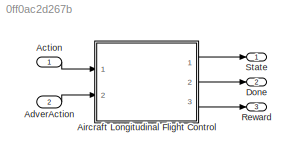
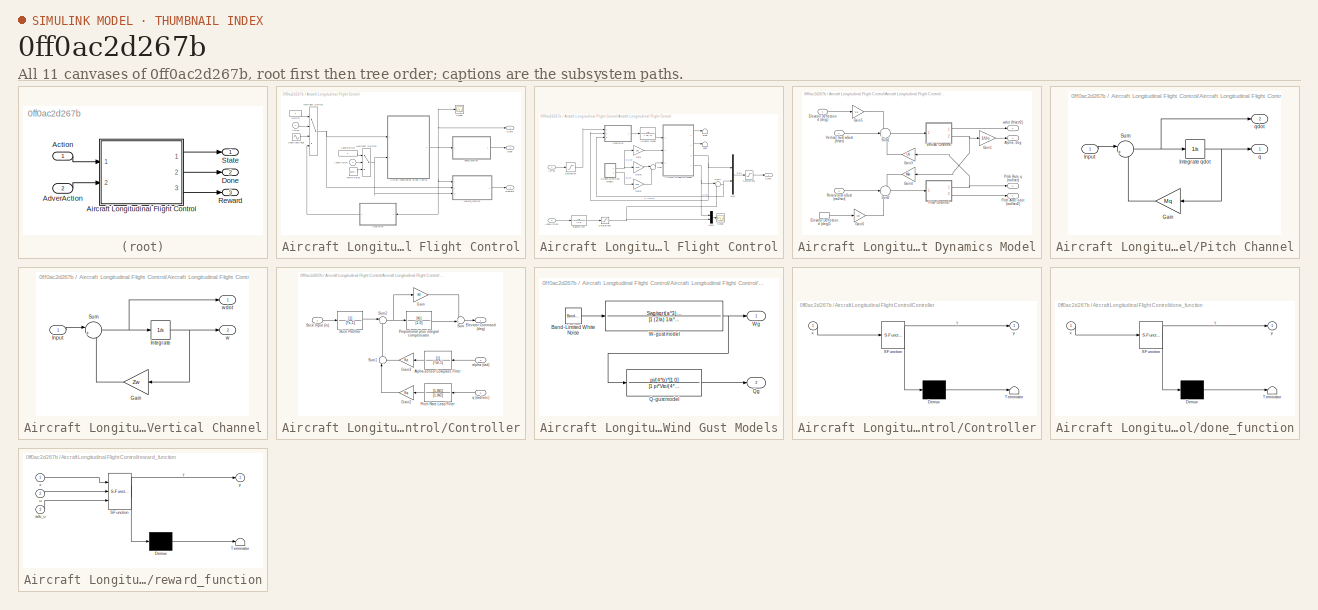
[diagram: thumbnail index - all 11 canvases of the model, root first then tree order]
MODEL slx_0ff0ac2d267b
KIND model
CONFIG AbsTol = auto
CONFIG EnableMultiTasking = off
CONFIG FixedStep = auto
CONFIG MaxStep = auto
CONFIG MinStep = auto
CONFIG RelTol = 1e-3
CONFIG SampleTimeConstraint = Unconstrained
CONFIG Solver = FixedStepAuto
CONFIG SolverName = FixedStepAuto
CONFIG StartTime = 0.0
CONFIG StopTime = 10.0
WORKSPACE source: MAT-file member
WORKSPACE Beta = 426.4352
BLOCK [Inport] Action
  IconDisplay = Port number
BLOCK [Inport] AdverAction
  IconDisplay = Port number
  Port = 2
BLOCK [SubSystem] Aircraft Longitudinal Flight Control
  Ports = [2, 3]
  RequestExecContextInheritance = off
BLOCK [Inport] Aircraft Longitudinal Flight Control/Action
  IconDisplay = Port number
BLOCK [Inport] Aircraft Longitudinal Flight Control/AdverAction
  IconDisplay = Port number
  Port = 2
BLOCK [Constant] Aircraft Longitudinal Flight Control/AdverSwitch
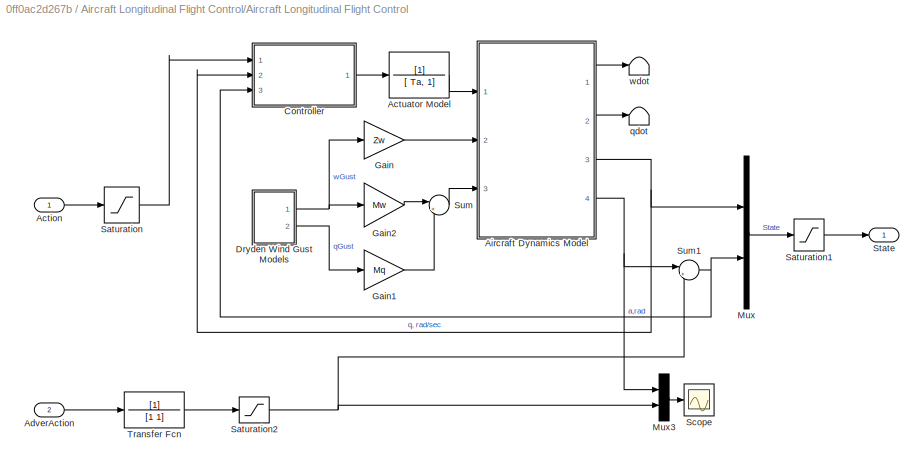
BLOCK [SubSystem] Aircraft Longitudinal Flight Control/Aircraft Longitudinal Flight Control
  Ports = [2, 1]
  RequestExecContextInheritance = off
BLOCK [Inport] Aircraft Longitudinal Flight Control/Aircraft Longitudinal Flight Control/Action
  IconDisplay = Port number
BLOCK [TransferFcn] Aircraft Longitudinal Flight Control/Aircraft Longitudinal Flight Control/Actuator Model
  Denominator = [ Ta, 1]
BLOCK [Inport] Aircraft Longitudinal Flight Control/Aircraft Longitudinal Flight Control/AdverAction
  IconDisplay = Port number
  Port = 2
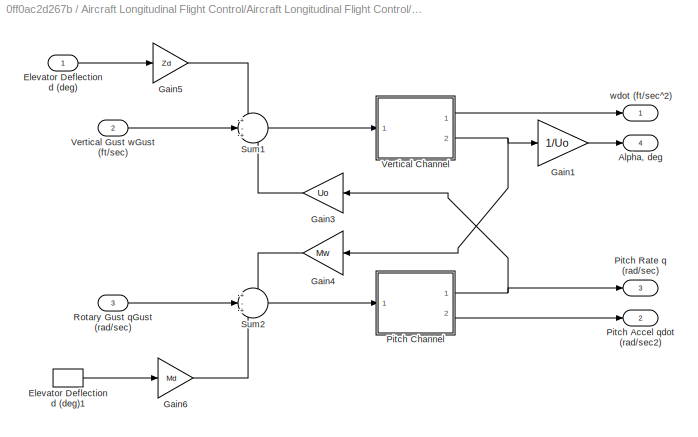
BLOCK [SubSystem] Aircraft Longitudinal Flight Control/Aircraft Longitudinal Flight Control/Aircraft Dynamics Model
  Ports = [3, 4]
  RequestExecContextInheritance = off
BLOCK [Outport] Aircraft Longitudinal Flight Control/Aircraft Longitudinal Flight Control/Aircraft Dynamics Model/Alpha, deg
  IconDisplay = Port number
  InitialOutput = 0
  Port = 4
BLOCK [Inport] Aircraft Longitudinal Flight Control/Aircraft Longitudinal Flight Control/Aircraft Dynamics Model/Elevator Deflection d (deg)
  IconDisplay = Port number
BLOCK [InportShadow] Aircraft Longitudinal Flight Control/Aircraft Longitudinal Flight Control/Aircraft Dynamics Model/Elevator Deflection d (deg)1
  IconDisplay = Port number
BLOCK [Gain] Aircraft Longitudinal Flight Control/Aircraft Longitudinal Flight Control/Aircraft Dynamics Model/Gain1
  Gain = 1/Uo
BLOCK [Gain] Aircraft Longitudinal Flight Control/Aircraft Longitudinal Flight Control/Aircraft Dynamics Model/Gain3
  Gain = Uo
BLOCK [Gain] Aircraft Longitudinal Flight Control/Aircraft Longitudinal Flight Control/Aircraft Dynamics Model/Gain4
  Gain = Mw
BLOCK [Gain] Aircraft Longitudinal Flight Control/Aircraft Longitudinal Flight Control/Aircraft Dynamics Model/Gain5
  Gain = Zd
BLOCK [Gain] Aircraft Longitudinal Flight Control/Aircraft Longitudinal Flight Control/Aircraft Dynamics Model/Gain6
  Gain = Md
BLOCK [Outport] Aircraft Longitudinal Flight Control/Aircraft Longitudinal Flight Control/Aircraft Dynamics Model/Pitch Accel qdot (rad//sec2)
  IconDisplay = Port number
  InitialOutput = 0
  Port = 2
BLOCK [SubSystem] Aircraft Longitudinal Flight Control/Aircraft Longitudinal Flight Control/Aircraft Dynamics Model/Pitch Channel
  Ports = [1, 2]
  RequestExecContextInheritance = off
BLOCK [Gain] Aircraft Longitudinal Flight Control/Aircraft Longitudinal Flight Control/Aircraft Dynamics Model/Pitch Channel/Gain
  Gain = Mq
BLOCK [Inport] Aircraft Longitudinal Flight Control/Aircraft Longitudinal Flight Control/Aircraft Dynamics Model/Pitch Channel/Input
  IconDisplay = Port number
BLOCK [Integrator] Aircraft Longitudinal Flight Control/Aircraft Longitudinal Flight Control/Aircraft Dynamics Model/Pitch Channel/Integrate qdot
  InitialCondition = x_ini(2)
  Ports = [1, 1]
BLOCK [Sum] Aircraft Longitudinal Flight Control/Aircraft Longitudinal Flight Control/Aircraft Dynamics Model/Pitch Channel/Sum
  IconShape = round
  Inputs = |++
  Ports = [2, 1]
BLOCK [Outport] Aircraft Longitudinal Flight Control/Aircraft Longitudinal Flight Control/Aircraft Dynamics Model/Pitch Channel/q
  IconDisplay = Port number
  InitialOutput = 0
BLOCK [Outport] Aircraft Longitudinal Flight Control/Aircraft Longitudinal Flight Control/Aircraft Dynamics Model/Pitch Channel/qdot
  IconDisplay = Port number
  InitialOutput = 0
  Port = 2
BLOCK [Outport] Aircraft Longitudinal Flight Control/Aircraft Longitudinal Flight Control/Aircraft Dynamics Model/Pitch Rate q (rad//sec)
  IconDisplay = Port number
  InitialOutput = 0
  Port = 3
BLOCK [Inport] Aircraft Longitudinal Flight Control/Aircraft Longitudinal Flight Control/Aircraft Dynamics Model/Rotary Gust qGust (rad//sec)
  IconDisplay = Port number
  Port = 3
BLOCK [Sum] Aircraft Longitudinal Flight Control/Aircraft Longitudinal Flight Control/Aircraft Dynamics Model/Sum1
  IconShape = round
  Inputs = +-+
  Ports = [3, 1]
BLOCK [Sum] Aircraft Longitudinal Flight Control/Aircraft Longitudinal Flight Control/Aircraft Dynamics Model/Sum2
  IconShape = round
  Inputs = +-+
  Ports = [3, 1]
BLOCK [SubSystem] Aircraft Longitudinal Flight Control/Aircraft Longitudinal Flight Control/Aircraft Dynamics Model/Vertical Channel
  Ports = [1, 2]
  RequestExecContextInheritance = off
BLOCK [Gain] Aircraft Longitudinal Flight Control/Aircraft Longitudinal Flight Control/Aircraft Dynamics Model/Vertical Channel/Gain
  Gain = Zw
BLOCK [Inport] Aircraft Longitudinal Flight Control/Aircraft Longitudinal Flight Control/Aircraft Dynamics Model/Vertical Channel/Input
  IconDisplay = Port number
BLOCK [Integrator] Aircraft Longitudinal Flight Control/Aircraft Longitudinal Flight Control/Aircraft Dynamics Model/Vertical Channel/Integrate
  InitialCondition = x_ini(1)
  Ports = [1, 1]
BLOCK [Sum] Aircraft Longitudinal Flight Control/Aircraft Longitudinal Flight Control/Aircraft Dynamics Model/Vertical Channel/Sum
  IconShape = round
  Inputs = |++
  Ports = [2, 1]
BLOCK [Outport] Aircraft Longitudinal Flight Control/Aircraft Longitudinal Flight Control/Aircraft Dynamics Model/Vertical Channel/w
  IconDisplay = Port number
  InitialOutput = 0
  Port = 2
BLOCK [Outport] Aircraft Longitudinal Flight Control/Aircraft Longitudinal Flight Control/Aircraft Dynamics Model/Vertical Channel/wdot
  IconDisplay = Port number
  InitialOutput = 0
BLOCK [Inport] Aircraft Longitudinal Flight Control/Aircraft Longitudinal Flight Control/Aircraft Dynamics Model/Vertical Gust wGust (ft//sec)
  IconDisplay = Port number
  Port = 2
BLOCK [Outport] Aircraft Longitudinal Flight Control/Aircraft Longitudinal Flight Control/Aircraft Dynamics Model/wdot (ft//sec^2)
  IconDisplay = Port number
  InitialOutput = 0
BLOCK [SubSystem] Aircraft Longitudinal Flight Control/Aircraft Longitudinal Flight Control/Controller
  Ports = [3, 1]
  RequestExecContextInheritance = off
BLOCK [TransferFcn] Aircraft Longitudinal Flight Control/Aircraft Longitudinal Flight Control/Controller/Alpha-sensor Low-pass Filter
  Denominator = [Tal,1]
BLOCK [Outport] Aircraft Longitudinal Flight Control/Aircraft Longitudinal Flight Control/Controller/Elevator Command (deg)
  IconDisplay = Port number
  InitialOutput = 0
BLOCK [Gain] Aircraft Longitudinal Flight Control/Aircraft Longitudinal Flight Control/Controller/Gain
  Gain = Kf
BLOCK [Gain] Aircraft Longitudinal Flight Control/Aircraft Longitudinal Flight Control/Controller/Gain2
  Gain = Kq
BLOCK [Gain] Aircraft Longitudinal Flight Control/Aircraft Longitudinal Flight Control/Controller/Gain3
  Gain = Ka
BLOCK [TransferFcn] Aircraft Longitudinal Flight Control/Aircraft Longitudinal Flight Control/Controller/Pitch Rate Lead Filter
  Denominator = [1,W2]
  Numerator = [1,W1]
BLOCK [TransferFcn] Aircraft Longitudinal Flight Control/Aircraft Longitudinal Flight Control/Controller/Proportional plus integral compensator
  Denominator = [1,0]
  Numerator = [Ki]
BLOCK [Inport] Aircraft Longitudinal Flight Control/Aircraft Longitudinal Flight Control/Controller/Stick Input (in)
  IconDisplay = Port number
BLOCK [TransferFcn] Aircraft Longitudinal Flight Control/Aircraft Longitudinal Flight Control/Controller/Stick Prefilter
  Denominator = [Ts,1]
BLOCK [Sum] Aircraft Longitudinal Flight Control/Aircraft Longitudinal Flight Control/Controller/Sum
  IconShape = round
  Inputs = ++|
  Ports = [2, 1]
BLOCK [Sum] Aircraft Longitudinal Flight Control/Aircraft Longitudinal Flight Control/Controller/Sum1
  IconShape = round
  Inputs = |++
  Ports = [2, 1]
BLOCK [Sum] Aircraft Longitudinal Flight Control/Aircraft Longitudinal Flight Control/Controller/Sum2
  IconShape = round
  Inputs = |+-
  Ports = [2, 1]
BLOCK [Inport] Aircraft Longitudinal Flight Control/Aircraft Longitudinal Flight Control/Controller/alpha (rad)
  IconDisplay = Port number
  Port = 3
BLOCK [Inport] Aircraft Longitudinal Flight Control/Aircraft Longitudinal Flight Control/Controller/q (rad//sec)
  IconDisplay = Port number
  Port = 2
BLOCK [SubSystem] Aircraft Longitudinal Flight Control/Aircraft Longitudinal Flight Control/Dryden Wind Gust Models
  Ports = [0, 2]
  RequestExecContextInheritance = off
BLOCK [Reference] Aircraft Longitudinal Flight Control/Aircraft Longitudinal Flight Control/Dryden Wind Gust Models/Band-Limited White Noise  REF=simulink/Sources/Band-Limited
White Noise
  Ports = [0, 1]
  SourceBlock = simulink/Sources/Band-Limited\nWhite Noise
  SourceProductBaseCode = SL
  SourceProductName = Simulink
  SourceType = Band-Limited White Noise.
BLOCK [TransferFcn] Aircraft Longitudinal Flight Control/Aircraft Longitudinal Flight Control/Dryden Wind Gust Models/Q-gust model
  Denominator = [1 pi*Vto/(4*b)]
  Numerator = pi/(4*b)*[1 0]
BLOCK [Outport] Aircraft Longitudinal Flight Control/Aircraft Longitudinal Flight Control/Dryden Wind Gust Models/Qg
  IconDisplay = Port number
  InitialOutput = 0
  Port = 2
BLOCK [TransferFcn] Aircraft Longitudinal Flight Control/Aircraft Longitudinal Flight Control/Dryden Wind Gust Models/W-gust model
  Denominator = [1 (2/a) 1/a^2]
  Numerator = Swg/sqrt(a^3)*[sqrt(3)*a,1]
BLOCK [Outport] Aircraft Longitudinal Flight Control/Aircraft Longitudinal Flight Control/Dryden Wind Gust Models/Wg
  IconDisplay = Port number
  InitialOutput = 0
BLOCK [Gain] Aircraft Longitudinal Flight Control/Aircraft Longitudinal Flight Control/Gain
  Gain = Zw
BLOCK [Gain] Aircraft Longitudinal Flight Control/Aircraft Longitudinal Flight Control/Gain1
  Gain = Mq
BLOCK [Gain] Aircraft Longitudinal Flight Control/Aircraft Longitudinal Flight Control/Gain2
  Gain = Mw
BLOCK [Mux] Aircraft Longitudinal Flight Control/Aircraft Longitudinal Flight Control/Mux
  DisplayOption = bar
  Inputs = 2
  Ports = [2, 1]
BLOCK [Mux] Aircraft Longitudinal Flight Control/Aircraft Longitudinal Flight Control/Mux3
  DisplayOption = bar
  Inputs = 2
  Ports = [2, 1]
BLOCK [Saturate] Aircraft Longitudinal Flight Control/Aircraft Longitudinal Flight Control/Saturation
  InputPortMap = u0
  LowerLimit = a_min
  Ports = [1, 1]
  UpperLimit = a_max
BLOCK [Saturate] Aircraft Longitudinal Flight Control/Aircraft Longitudinal Flight Control/Saturation1
  InputPortMap = u0
  LowerLimit = x_min
  Ports = [1, 1]
  UpperLimit = x_max
BLOCK [Saturate] Aircraft Longitudinal Flight Control/Aircraft Longitudinal Flight Control/Saturation2
  InputPortMap = u0
  LowerLimit = adva_min
  Ports = [1, 1]
  UpperLimit = adva_max
BLOCK [Scope] Aircraft Longitudinal Flight Control/Aircraft Longitudinal Flight Control/Scope
  Floating = off
  NumInputPorts = 1
  Ports = [1]
  ScopeSpecificationString = Simulink.scopes.TimeScopeBlockCfg('CurrentConfiguration', extmgr.ConfigurationSet(extmgr.Configuration('Core','General UI',true),extmgr.Configuration('Core','Source UI',true),extmgr.Configuration('Sources','WiredSimulink',true,'DataLoggingVariableName','ScopeData1'),extmgr.Configuration('Visuals','Time Domain',true,'SerializedDisplays',{struct('MinYLimReal','-1.00000','MaxYLimReal','1.00000','YLab...<+1395ch>
BLOCK [Outport] Aircraft Longitudinal Flight Control/Aircraft Longitudinal Flight Control/State
  IconDisplay = Port number
  VectorParamsAs1DForOutWhenUnconnected = on
BLOCK [Sum] Aircraft Longitudinal Flight Control/Aircraft Longitudinal Flight Control/Sum
  IconShape = round
  Inputs = |++
  Ports = [2, 1]
BLOCK [Sum] Aircraft Longitudinal Flight Control/Aircraft Longitudinal Flight Control/Sum1
  IconShape = round
  InputSameDT = off
  Inputs = |++
  OutDataTypeStr = Inherit: Inherit via internal rule
  Ports = [2, 1]
  SaturateOnIntegerOverflow = off
BLOCK [TransferFcn] Aircraft Longitudinal Flight Control/Aircraft Longitudinal Flight Control/Transfer Fcn
  Denominator = [1 1]
BLOCK [Terminator] Aircraft Longitudinal Flight Control/Aircraft Longitudinal Flight Control/qdot
BLOCK [Terminator] Aircraft Longitudinal Flight Control/Aircraft Longitudinal Flight Control/wdot
BLOCK [SubSystem] Aircraft Longitudinal Flight Control/Controller
  ErrorFcn = Stateflow.Translate.translate
  PermitHierarchicalResolution = ExplicitOnly
  Ports = [1, 1]
  RequestExecContextInheritance = off
  SFBlockType = MATLAB Function
  TreatAsAtomicUnit = on
BLOCK [Demux] Aircraft Longitudinal Flight Control/Controller/ Demux 
  Outputs = 1
  Ports = [1, 1]
BLOCK [S-Function] Aircraft Longitudinal Flight Control/Controller/ SFunction 
  EnableBusSupport = on
  FunctionName = sf_sfun
  PortCounts = [1 2]
  Ports = [1, 2]
  SFcnIsStateOwnerBlock = off
  SFunctionDeploymentMode = off
  Tag = Stateflow S-Function aircraft 1
BLOCK [Terminator] Aircraft Longitudinal Flight Control/Controller/ Terminator 
BLOCK [Inport] Aircraft Longitudinal Flight Control/Controller/x
  IconDisplay = Port number
BLOCK [Outport] Aircraft Longitudinal Flight Control/Controller/y
  IconDisplay = Port number
  VectorParamsAs1DForOutWhenUnconnected = on
BLOCK [Outport] Aircraft Longitudinal Flight Control/Done
  IconDisplay = Port number
  Port = 2
  VectorParamsAs1DForOutWhenUnconnected = on
BLOCK [MultiPortSwitch] Aircraft Longitudinal Flight Control/Multiport Switch
  InputSameDT = off
  Ports = [4, 1]
  SaturateOnIntegerOverflow = off
BLOCK [MultiPortSwitch] Aircraft Longitudinal Flight Control/Multiport Switch1
  InputSameDT = off
  Inputs = 2
  Ports = [3, 1]
  SaturateOnIntegerOverflow = off
BLOCK [Sin] Aircraft Longitudinal Flight Control/Open-loop input
  Ports = [0, 1]
  SampleTime = 0
BLOCK [Outport] Aircraft Longitudinal Flight Control/Reward
  IconDisplay = Port number
  Port = 3
  VectorParamsAs1DForOutWhenUnconnected = on
BLOCK [Scope] Aircraft Longitudinal Flight Control/Scope
  Floating = off
  NumInputPorts = 1
  Ports = [1]
  ScopeSpecificationString = Simulink.scopes.TimeScopeBlockCfg('CurrentConfiguration', extmgr.ConfigurationSet(extmgr.Configuration('Core','General UI',true),extmgr.Configuration('Core','Source UI',true),extmgr.Configuration('Sources','WiredSimulink',true,'DataLoggingVariableName','ScopeData1'),extmgr.Configuration('Visuals','Time Domain',true,'SerializedDisplays',{struct('MinYLimReal','-0.00562','MaxYLimReal','0.00516','YLab...<+1438ch>
BLOCK [Outport] Aircraft Longitudinal Flight Control/State
  IconDisplay = Port number
  VectorParamsAs1DForOutWhenUnconnected = on
BLOCK [Constant] Aircraft Longitudinal Flight Control/Switch
BLOCK [Reference] Aircraft Longitudinal Flight Control/White Noise  REF=simulink/Sources/Band-Limited
White Noise
  Commented = on
  Ports = [0, 1]
  SourceBlock = simulink/Sources/Band-Limited\nWhite Noise
  SourceProductBaseCode = SL
  SourceProductName = Simulink
  SourceType = Band-Limited White Noise.
BLOCK [SubSystem] Aircraft Longitudinal Flight Control/done_function
  ErrorFcn = Stateflow.Translate.translate
  PermitHierarchicalResolution = ExplicitOnly
  Ports = [1, 1]
  RequestExecContextInheritance = off
  SFBlockType = MATLAB Function
  TreatAsAtomicUnit = on
BLOCK [Demux] Aircraft Longitudinal Flight Control/done_function/ Demux 
  Outputs = 1
  Ports = [1, 1]
BLOCK [S-Function] Aircraft Longitudinal Flight Control/done_function/ SFunction 
  EnableBusSupport = on
  FunctionName = sf_sfun
  PortCounts = [1 2]
  Ports = [1, 2]
  SFcnIsStateOwnerBlock = off
  SFunctionDeploymentMode = off
  Tag = Stateflow S-Function aircraft 2
BLOCK [Terminator] Aircraft Longitudinal Flight Control/done_function/ Terminator 
BLOCK [Inport] Aircraft Longitudinal Flight Control/done_function/x
  IconDisplay = Port number
BLOCK [Outport] Aircraft Longitudinal Flight Control/done_function/y
  IconDisplay = Port number
  VectorParamsAs1DForOutWhenUnconnected = on
BLOCK [SubSystem] Aircraft Longitudinal Flight Control/reward_function
  ErrorFcn = Stateflow.Translate.translate
  PermitHierarchicalResolution = ExplicitOnly
  Ports = [3, 1]
  RequestExecContextInheritance = off
  SFBlockType = MATLAB Function
  TreatAsAtomicUnit = on
BLOCK [Demux] Aircraft Longitudinal Flight Control/reward_function/ Demux 
  Outputs = 1
  Ports = [1, 1]
BLOCK [S-Function] Aircraft Longitudinal Flight Control/reward_function/ SFunction 
  EnableBusSupport = on
  FunctionName = sf_sfun
  PortCounts = [3 2]
  Ports = [3, 2]
  SFcnIsStateOwnerBlock = off
  SFunctionDeploymentMode = off
  Tag = Stateflow S-Function aircraft 6
BLOCK [Terminator] Aircraft Longitudinal Flight Control/reward_function/ Terminator 
BLOCK [Inport] Aircraft Longitudinal Flight Control/reward_function/adv_u
  IconDisplay = Port number
  Port = 3
BLOCK [Inport] Aircraft Longitudinal Flight Control/reward_function/u
  IconDisplay = Port number
  Port = 2
BLOCK [Inport] Aircraft Longitudinal Flight Control/reward_function/x
  IconDisplay = Port number
BLOCK [Outport] Aircraft Longitudinal Flight Control/reward_function/y
  IconDisplay = Port number
  VectorParamsAs1DForOutWhenUnconnected = on
BLOCK [Outport] Done
  IconDisplay = Port number
  Port = 2
  VectorParamsAs1DForOutWhenUnconnected = on
BLOCK [Outport] Reward
  IconDisplay = Port number
  Port = 3
  VectorParamsAs1DForOutWhenUnconnected = on
BLOCK [Outport] State
  IconDisplay = Port number
  VectorParamsAs1DForOutWhenUnconnected = on
LINE Action:1 -> Aircraft Longitudinal Flight Control:1
LINE AdverAction:1 -> Aircraft Longitudinal Flight Control:2
LINE Aircraft Longitudinal Flight Control/Action:1 -> Aircraft Longitudinal Flight Control/Multiport Switch:2
LINE Aircraft Longitudinal Flight Control/AdverAction:1 -> Aircraft Longitudinal Flight Control/Multiport Switch1:2
LINE Aircraft Longitudinal Flight Control/AdverSwitch:1 -> Aircraft Longitudinal Flight Control/Multiport Switch1:1
LINE Aircraft Longitudinal Flight Control/Aircraft Longitudinal Flight Control/Action:1 -> Aircraft Longitudinal Flight Control/Aircraft Longitudinal Flight Control/Saturation:1
LINE Aircraft Longitudinal Flight Control/Aircraft Longitudinal Flight Control/Actuator Model:1 -> Aircraft Longitudinal Flight Control/Aircraft Longitudinal Flight Control/Aircraft Dynamics Model:1
LINE Aircraft Longitudinal Flight Control/Aircraft Longitudinal Flight Control/AdverAction:1 -> Aircraft Longitudinal Flight Control/Aircraft Longitudinal Flight Control/Transfer Fcn:1
LINE Aircraft Longitudinal Flight Control/Aircraft Longitudinal Flight Control/Aircraft Dynamics Model/Elevator Deflection d (deg)1:1 -> Aircraft Longitudinal Flight Control/Aircraft Longitudinal Flight Control/Aircraft Dynamics Model/Gain6:1
LINE Aircraft Longitudinal Flight Control/Aircraft Longitudinal Flight Control/Aircraft Dynamics Model/Elevator Deflection d (deg):1 -> Aircraft Longitudinal Flight Control/Aircraft Longitudinal Flight Control/Aircraft Dynamics Model/Gain5:1
LINE Aircraft Longitudinal Flight Control/Aircraft Longitudinal Flight Control/Aircraft Dynamics Model/Gain1:1 -> Aircraft Longitudinal Flight Control/Aircraft Longitudinal Flight Control/Aircraft Dynamics Model/Alpha, deg:1
LINE Aircraft Longitudinal Flight Control/Aircraft Longitudinal Flight Control/Aircraft Dynamics Model/Gain3:1 -> Aircraft Longitudinal Flight Control/Aircraft Longitudinal Flight Control/Aircraft Dynamics Model/Sum1:3
LINE Aircraft Longitudinal Flight Control/Aircraft Longitudinal Flight Control/Aircraft Dynamics Model/Gain4:1 -> Aircraft Longitudinal Flight Control/Aircraft Longitudinal Flight Control/Aircraft Dynamics Model/Sum2:1
LINE Aircraft Longitudinal Flight Control/Aircraft Longitudinal Flight Control/Aircraft Dynamics Model/Gain5:1 -> Aircraft Longitudinal Flight Control/Aircraft Longitudinal Flight Control/Aircraft Dynamics Model/Sum1:1
LINE Aircraft Longitudinal Flight Control/Aircraft Longitudinal Flight Control/Aircraft Dynamics Model/Gain6:1 -> Aircraft Longitudinal Flight Control/Aircraft Longitudinal Flight Control/Aircraft Dynamics Model/Sum2:3
LINE Aircraft Longitudinal Flight Control/Aircraft Longitudinal Flight Control/Aircraft Dynamics Model/Pitch Channel/Gain:1 -> Aircraft Longitudinal Flight Control/Aircraft Longitudinal Flight Control/Aircraft Dynamics Model/Pitch Channel/Sum:2
LINE Aircraft Longitudinal Flight Control/Aircraft Longitudinal Flight Control/Aircraft Dynamics Model/Pitch Channel/Input:1 -> Aircraft Longitudinal Flight Control/Aircraft Longitudinal Flight Control/Aircraft Dynamics Model/Pitch Channel/Sum:1
NET Aircraft Longitudinal Flight Control/Aircraft Longitudinal Flight Control/Aircraft Dynamics Model/Pitch Channel/Integrate qdot:1 -> Aircraft Longitudinal Flight Control/Aircraft Longitudinal Flight Control/Aircraft Dynamics Model/Pitch Channel/Gain:1, Aircraft Longitudinal Flight Control/Aircraft Longitudinal Flight Control/Aircraft Dynamics Model/Pitch Channel/q:1
NET Aircraft Longitudinal Flight Control/Aircraft Longitudinal Flight Control/Aircraft Dynamics Model/Pitch Channel/Sum:1 -> Aircraft Longitudinal Flight Control/Aircraft Longitudinal Flight Control/Aircraft Dynamics Model/Pitch Channel/Integrate qdot:1, Aircraft Longitudinal Flight Control/Aircraft Longitudinal Flight Control/Aircraft Dynamics Model/Pitch Channel/qdot:1
NET Aircraft Longitudinal Flight Control/Aircraft Longitudinal Flight Control/Aircraft Dynamics Model/Pitch Channel:1 -> Aircraft Longitudinal Flight Control/Aircraft Longitudinal Flight Control/Aircraft Dynamics Model/Gain3:1, Aircraft Longitudinal Flight Control/Aircraft Longitudinal Flight Control/Aircraft Dynamics Model/Pitch Rate q (rad//sec):1
LINE Aircraft Longitudinal Flight Control/Aircraft Longitudinal Flight Control/Aircraft Dynamics Model/Pitch Channel:2 -> Aircraft Longitudinal Flight Control/Aircraft Longitudinal Flight Control/Aircraft Dynamics Model/Pitch Accel qdot (rad//sec2):1
LINE Aircraft Longitudinal Flight Control/Aircraft Longitudinal Flight Control/Aircraft Dynamics Model/Rotary Gust qGust (rad//sec):1 -> Aircraft Longitudinal Flight Control/Aircraft Longitudinal Flight Control/Aircraft Dynamics Model/Sum2:2
LINE Aircraft Longitudinal Flight Control/Aircraft Longitudinal Flight Control/Aircraft Dynamics Model/Sum1:1 -> Aircraft Longitudinal Flight Control/Aircraft Longitudinal Flight Control/Aircraft Dynamics Model/Vertical Channel:1
LINE Aircraft Longitudinal Flight Control/Aircraft Longitudinal Flight Control/Aircraft Dynamics Model/Sum2:1 -> Aircraft Longitudinal Flight Control/Aircraft Longitudinal Flight Control/Aircraft Dynamics Model/Pitch Channel:1
LINE Aircraft Longitudinal Flight Control/Aircraft Longitudinal Flight Control/Aircraft Dynamics Model/Vertical Channel/Gain:1 -> Aircraft Longitudinal Flight Control/Aircraft Longitudinal Flight Control/Aircraft Dynamics Model/Vertical Channel/Sum:2
LINE Aircraft Longitudinal Flight Control/Aircraft Longitudinal Flight Control/Aircraft Dynamics Model/Vertical Channel/Input:1 -> Aircraft Longitudinal Flight Control/Aircraft Longitudinal Flight Control/Aircraft Dynamics Model/Vertical Channel/Sum:1
NET Aircraft Longitudinal Flight Control/Aircraft Longitudinal Flight Control/Aircraft Dynamics Model/Vertical Channel/Integrate:1 -> Aircraft Longitudinal Flight Control/Aircraft Longitudinal Flight Control/Aircraft Dynamics Model/Vertical Channel/Gain:1, Aircraft Longitudinal Flight Control/Aircraft Longitudinal Flight Control/Aircraft Dynamics Model/Vertical Channel/w:1
NET Aircraft Longitudinal Flight Control/Aircraft Longitudinal Flight Control/Aircraft Dynamics Model/Vertical Channel/Sum:1 -> Aircraft Longitudinal Flight Control/Aircraft Longitudinal Flight Control/Aircraft Dynamics Model/Vertical Channel/Integrate:1, Aircraft Longitudinal Flight Control/Aircraft Longitudinal Flight Control/Aircraft Dynamics Model/Vertical Channel/wdot:1
LINE Aircraft Longitudinal Flight Control/Aircraft Longitudinal Flight Control/Aircraft Dynamics Model/Vertical Channel:1 -> Aircraft Longitudinal Flight Control/Aircraft Longitudinal Flight Control/Aircraft Dynamics Model/wdot (ft//sec^2):1
NET Aircraft Longitudinal Flight Control/Aircraft Longitudinal Flight Control/Aircraft Dynamics Model/Vertical Channel:2 -> Aircraft Longitudinal Flight Control/Aircraft Longitudinal Flight Control/Aircraft Dynamics Model/Gain1:1, Aircraft Longitudinal Flight Control/Aircraft Longitudinal Flight Control/Aircraft Dynamics Model/Gain4:1
LINE Aircraft Longitudinal Flight Control/Aircraft Longitudinal Flight Control/Aircraft Dynamics Model/Vertical Gust wGust (ft//sec):1 -> Aircraft Longitudinal Flight Control/Aircraft Longitudinal Flight Control/Aircraft Dynamics Model/Sum1:2
LINE Aircraft Longitudinal Flight Control/Aircraft Longitudinal Flight Control/Aircraft Dynamics Model:1 -> Aircraft Longitudinal Flight Control/Aircraft Longitudinal Flight Control/wdot:1
LINE Aircraft Longitudinal Flight Control/Aircraft Longitudinal Flight Control/Aircraft Dynamics Model:2 -> Aircraft Longitudinal Flight Control/Aircraft Longitudinal Flight Control/qdot:1
NET Aircraft Longitudinal Flight Control/Aircraft Longitudinal Flight Control/Aircraft Dynamics Model:3 -> Aircraft Longitudinal Flight Control/Aircraft Longitudinal Flight Control/Controller:2, Aircraft Longitudinal Flight Control/Aircraft Longitudinal Flight Control/Mux:1
NET Aircraft Longitudinal Flight Control/Aircraft Longitudinal Flight Control/Aircraft Dynamics Model:4 -> Aircraft Longitudinal Flight Control/Aircraft Longitudinal Flight Control/Mux3:1, Aircraft Longitudinal Flight Control/Aircraft Longitudinal Flight Control/Sum1:1
LINE Aircraft Longitudinal Flight Control/Aircraft Longitudinal Flight Control/Controller/Alpha-sensor Low-pass Filter:1 -> Aircraft Longitudinal Flight Control/Aircraft Longitudinal Flight Control/Controller/Gain3:1
LINE Aircraft Longitudinal Flight Control/Aircraft Longitudinal Flight Control/Controller/Gain2:1 -> Aircraft Longitudinal Flight Control/Aircraft Longitudinal Flight Control/Controller/Sum1:1
LINE Aircraft Longitudinal Flight Control/Aircraft Longitudinal Flight Control/Controller/Gain3:1 -> Aircraft Longitudinal Flight Control/Aircraft Longitudinal Flight Control/Controller/Sum1:2
LINE Aircraft Longitudinal Flight Control/Aircraft Longitudinal Flight Control/Controller/Gain:1 -> Aircraft Longitudinal Flight Control/Aircraft Longitudinal Flight Control/Controller/Sum:1
LINE Aircraft Longitudinal Flight Control/Aircraft Longitudinal Flight Control/Controller/Pitch Rate Lead Filter:1 -> Aircraft Longitudinal Flight Control/Aircraft Longitudinal Flight Control/Controller/Gain2:1
LINE Aircraft Longitudinal Flight Control/Aircraft Longitudinal Flight Control/Controller/Proportional plus integral compensator:1 -> Aircraft Longitudinal Flight Control/Aircraft Longitudinal Flight Control/Controller/Sum:2
LINE Aircraft Longitudinal Flight Control/Aircraft Longitudinal Flight Control/Controller/Stick Input (in):1 -> Aircraft Longitudinal Flight Control/Aircraft Longitudinal Flight Control/Controller/Stick Prefilter:1
LINE Aircraft Longitudinal Flight Control/Aircraft Longitudinal Flight Control/Controller/Stick Prefilter:1 -> Aircraft Longitudinal Flight Control/Aircraft Longitudinal Flight Control/Controller/Sum2:1
LINE Aircraft Longitudinal Flight Control/Aircraft Longitudinal Flight Control/Controller/Sum1:1 -> Aircraft Longitudinal Flight Control/Aircraft Longitudinal Flight Control/Controller/Sum2:2
NET Aircraft Longitudinal Flight Control/Aircraft Longitudinal Flight Control/Controller/Sum2:1 -> Aircraft Longitudinal Flight Control/Aircraft Longitudinal Flight Control/Controller/Gain:1, Aircraft Longitudinal Flight Control/Aircraft Longitudinal Flight Control/Controller/Proportional plus integral compensator:1
LINE Aircraft Longitudinal Flight Control/Aircraft Longitudinal Flight Control/Controller/Sum:1 -> Aircraft Longitudinal Flight Control/Aircraft Longitudinal Flight Control/Controller/Elevator Command (deg):1
LINE Aircraft Longitudinal Flight Control/Aircraft Longitudinal Flight Control/Controller/alpha (rad):1 -> Aircraft Longitudinal Flight Control/Aircraft Longitudinal Flight Control/Controller/Alpha-sensor Low-pass Filter:1
LINE Aircraft Longitudinal Flight Control/Aircraft Longitudinal Flight Control/Controller/q (rad//sec):1 -> Aircraft Longitudinal Flight Control/Aircraft Longitudinal Flight Control/Controller/Pitch Rate Lead Filter:1
LINE Aircraft Longitudinal Flight Control/Aircraft Longitudinal Flight Control/Controller:1 -> Aircraft Longitudinal Flight Control/Aircraft Longitudinal Flight Control/Actuator Model:1
LINE Aircraft Longitudinal Flight Control/Aircraft Longitudinal Flight Control/Dryden Wind Gust Models/Band-Limited White Noise:1 -> Aircraft Longitudinal Flight Control/Aircraft Longitudinal Flight Control/Dryden Wind Gust Models/W-gust model:1
LINE Aircraft Longitudinal Flight Control/Aircraft Longitudinal Flight Control/Dryden Wind Gust Models/Q-gust model:1 -> Aircraft Longitudinal Flight Control/Aircraft Longitudinal Flight Control/Dryden Wind Gust Models/Qg:1
NET Aircraft Longitudinal Flight Control/Aircraft Longitudinal Flight Control/Dryden Wind Gust Models/W-gust model:1 -> Aircraft Longitudinal Flight Control/Aircraft Longitudinal Flight Control/Dryden Wind Gust Models/Q-gust model:1, Aircraft Longitudinal Flight Control/Aircraft Longitudinal Flight Control/Dryden Wind Gust Models/Wg:1
NET Aircraft Longitudinal Flight Control/Aircraft Longitudinal Flight Control/Dryden Wind Gust Models:1 -> Aircraft Longitudinal Flight Control/Aircraft Longitudinal Flight Control/Gain2:1, Aircraft Longitudinal Flight Control/Aircraft Longitudinal Flight Control/Gain:1
LINE Aircraft Longitudinal Flight Control/Aircraft Longitudinal Flight Control/Dryden Wind Gust Models:2 -> Aircraft Longitudinal Flight Control/Aircraft Longitudinal Flight Control/Gain1:1
LINE Aircraft Longitudinal Flight Control/Aircraft Longitudinal Flight Control/Gain1:1 -> Aircraft Longitudinal Flight Control/Aircraft Longitudinal Flight Control/Sum:2
LINE Aircraft Longitudinal Flight Control/Aircraft Longitudinal Flight Control/Gain2:1 -> Aircraft Longitudinal Flight Control/Aircraft Longitudinal Flight Control/Sum:1
LINE Aircraft Longitudinal Flight Control/Aircraft Longitudinal Flight Control/Gain:1 -> Aircraft Longitudinal Flight Control/Aircraft Longitudinal Flight Control/Aircraft Dynamics Model:2
LINE Aircraft Longitudinal Flight Control/Aircraft Longitudinal Flight Control/Mux3:1 -> Aircraft Longitudinal Flight Control/Aircraft Longitudinal Flight Control/Scope:1
LINE Aircraft Longitudinal Flight Control/Aircraft Longitudinal Flight Control/Mux:1 -> Aircraft Longitudinal Flight Control/Aircraft Longitudinal Flight Control/Saturation1:1
LINE Aircraft Longitudinal Flight Control/Aircraft Longitudinal Flight Control/Saturation1:1 -> Aircraft Longitudinal Flight Control/Aircraft Longitudinal Flight Control/State:1
NET Aircraft Longitudinal Flight Control/Aircraft Longitudinal Flight Control/Saturation2:1 -> Aircraft Longitudinal Flight Control/Aircraft Longitudinal Flight Control/Mux3:2, Aircraft Longitudinal Flight Control/Aircraft Longitudinal Flight Control/Sum1:2
LINE Aircraft Longitudinal Flight Control/Aircraft Longitudinal Flight Control/Saturation:1 -> Aircraft Longitudinal Flight Control/Aircraft Longitudinal Flight Control/Controller:1
NET Aircraft Longitudinal Flight Control/Aircraft Longitudinal Flight Control/Sum1:1 -> Aircraft Longitudinal Flight Control/Aircraft Longitudinal Flight Control/Controller:3, Aircraft Longitudinal Flight Control/Aircraft Longitudinal Flight Control/Mux:2
LINE Aircraft Longitudinal Flight Control/Aircraft Longitudinal Flight Control/Sum:1 -> Aircraft Longitudinal Flight Control/Aircraft Longitudinal Flight Control/Aircraft Dynamics Model:3
LINE Aircraft Longitudinal Flight Control/Aircraft Longitudinal Flight Control/Transfer Fcn:1 -> Aircraft Longitudinal Flight Control/Aircraft Longitudinal Flight Control/Saturation2:1
NET Aircraft Longitudinal Flight Control/Aircraft Longitudinal Flight Control:1 -> Aircraft Longitudinal Flight Control/Controller:1, Aircraft Longitudinal Flight Control/Scope:1, Aircraft Longitudinal Flight Control/State:1, Aircraft Longitudinal Flight Control/done_function:1, Aircraft Longitudinal Flight Control/reward_function:1
LINE Aircraft Longitudinal Flight Control/Controller:1 -> Aircraft Longitudinal Flight Control/Multiport Switch:4
NET Aircraft Longitudinal Flight Control/Multiport Switch1:1 -> Aircraft Longitudinal Flight Control/Aircraft Longitudinal Flight Control:2, Aircraft Longitudinal Flight Control/reward_function:3
NET Aircraft Longitudinal Flight Control/Multiport Switch:1 -> Aircraft Longitudinal Flight Control/Aircraft Longitudinal Flight Control:1, Aircraft Longitudinal Flight Control/reward_function:2
LINE Aircraft Longitudinal Flight Control/Open-loop input:1 -> Aircraft Longitudinal Flight Control/Multiport Switch:3
LINE Aircraft Longitudinal Flight Control/Switch:1 -> Aircraft Longitudinal Flight Control/Multiport Switch:1
LINE Aircraft Longitudinal Flight Control/White Noise:1 -> Aircraft Longitudinal Flight Control/Multiport Switch1:3
LINE Aircraft Longitudinal Flight Control/done_function:1 -> Aircraft Longitudinal Flight Control/Done:1
LINE Aircraft Longitudinal Flight Control/reward_function:1 -> Aircraft Longitudinal Flight Control/Reward:1
LINE Aircraft Longitudinal Flight Control:1 -> State:1
LINE Aircraft Longitudinal Flight Control:2 -> Done:1
LINE Aircraft Longitudinal Flight Control:3 -> Reward:1
note: NET lines group one-source signal fan-out (src -> all destinations, sorted); 1:1 wires keep LINE
CHART Aircraft Longitudinal Flight Control/Controller states=1 transitions=1
  STATE_LABEL 'eML_blk_kernel()'
  STATE_LABEL 'SCRIPT:\nfunction y = fcn(x)\ndone = (abs(x(1))>0.75);\ny = done;\n'
CHART Aircraft Longitudinal Flight Control/done_function states=1 transitions=1
  STATE_LABEL 'eML_blk_kernel()'
  STATE_LABEL 'SCRIPT:\nfunction y = fcn(x)\ndone = (abs(x(1))>0.75);\ny = done;\n'
CHART Aircraft Longitudinal Flight Control/reward_function states=1 transitions=1
  STATE_LABEL 'eML_blk_kernel()'
  STATE_LABEL 'SCRIPT:\nfunction y = fcn(x, u, adv_u)\n\ny = -(x(2)-0)^2 - u^2;\n'
